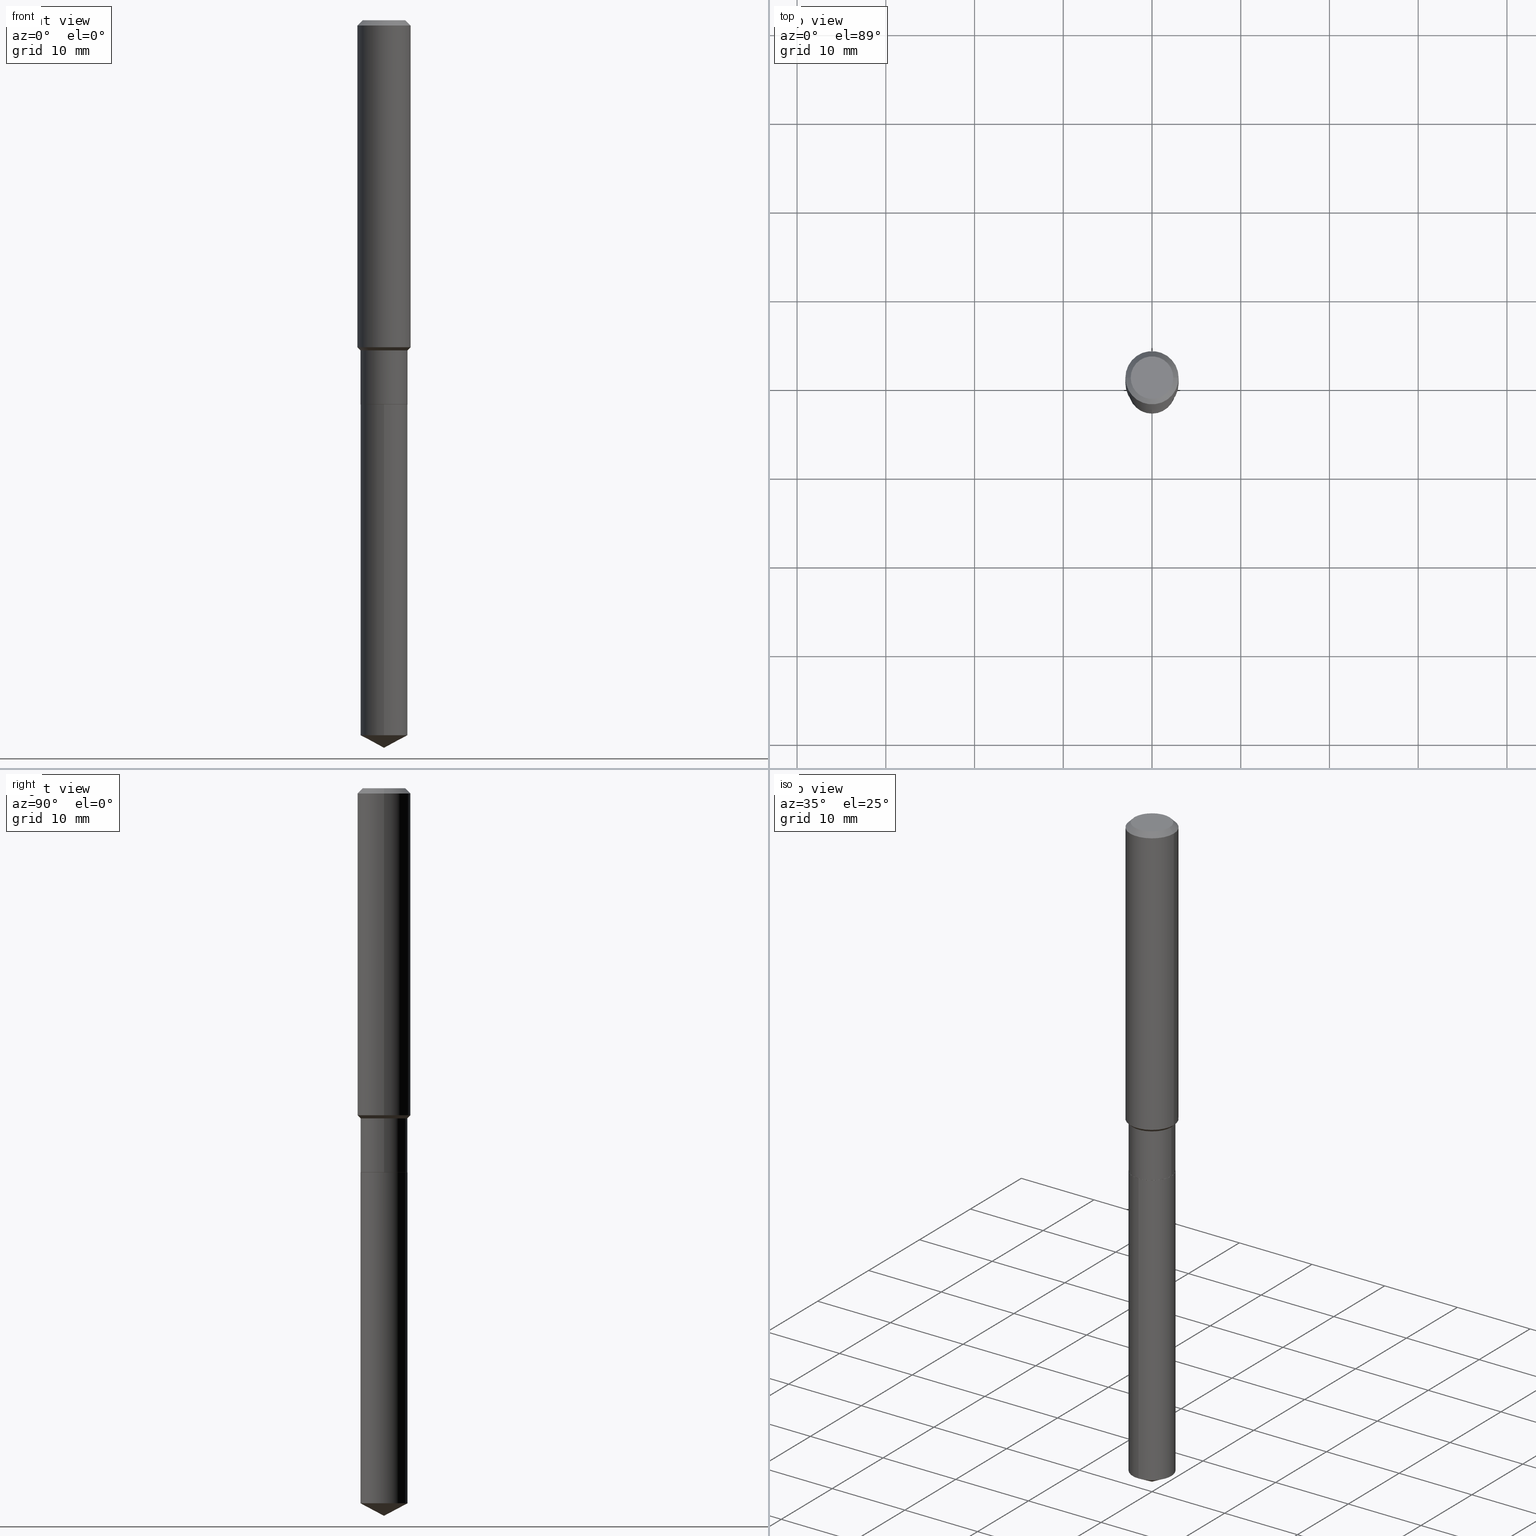
[diagram: canonical four-view strip — front | top / right | iso, engineering-drawing reading convention]
A machine part, canonical four-view strip (front | top / right | iso — engineering-drawing reading convention). The complete STEP part file that produces these views, byte-faithful:
ISO-10303-21;
HEADER;
FILE_DESCRIPTION (( 'STEP AP203' ),
    '1' );
FILE_NAME ('64823.STEP',
    '2024-04-24T19:02:20',
    ( '' ),
    ( '' ),
    'SwSTEP 2.0',
    'SolidWorks 2023',
    '' );
FILE_SCHEMA (( 'CONFIG_CONTROL_DESIGN' ));
ENDSEC;

DATA;
#1 = PLANE ( 'NONE',  #293 ) ;
#2 = ORIENTED_EDGE ( 'NONE', *, *, #68, .F. ) ;
#3 = EDGE_CURVE ( 'NONE', #156, #382, #23, .T. ) ;
#4 = DIRECTION ( 'NONE',  ( 0.7071067811865459074, -7.319954787623249734E-15, -0.7071067811865491270 ) ) ;
#5 = AXIS2_PLACEMENT_3D ( 'NONE', #26, #400, #403 ) ;
#6 = ORIENTED_EDGE ( 'NONE', *, *, #135, .F. ) ;
#7 = CARTESIAN_POINT ( 'NONE',  ( -8.838323479695300406E-28, 1.261888582880123659E-13, 36.14177874015747705 ) ) ;
#8 = EDGE_CURVE ( 'NONE', #153, #382, #288, .T. ) ;
#9 = ORIENTED_EDGE ( 'NONE', *, *, #162, .F. ) ;
#10 = APPROVAL_STATUS ( 'not_yet_approved' ) ;
#11 = ORIENTED_EDGE ( 'NONE', *, *, #12, .F. ) ;
#12 = EDGE_CURVE ( 'NONE', #382, #235, #321, .T. ) ;
#13 = DIRECTION ( 'NONE',  ( -1.000000000000000000, 6.982962677686266711E-15, 0.000000000000000000 ) ) ;
#14 = LOCAL_TIME ( 15, 2, 20.00000000000000000, #393 ) ;
#15 = CC_DESIGN_PERSON_AND_ORGANIZATION_ASSIGNMENT ( #20, #473, ( #323 ) ) ;
#16 = LENGTH_MEASURE_WITH_UNIT ( LENGTH_MEASURE( 0.02539999999999999897 ), #160 );
#17 = CARTESIAN_POINT ( 'NONE',  ( 7.894676434205138349E-29, -1.127159290225695874E-14, -3.228299999999999947 ) ) ;
#18 = PERSON_AND_ORGANIZATION ( #454, #185 ) ;
#19 = DIRECTION ( 'NONE',  ( -2.445468806185136597E-29, 3.491481338843145583E-15, 1.000000000000000000 ) ) ;
#20 = PERSON_AND_ORGANIZATION ( #454, #185 ) ;
#21 = EDGE_CURVE ( 'NONE', #53, #157, #96, .T. ) ;
#22 = FACE_OUTER_BOUND ( 'NONE', #245, .T. ) ;
#23 = CIRCLE ( 'NONE', #334, 0.1043499999999999567 ) ;
#24 = VECTOR ( 'NONE', #172, 39.37007874015748143 ) ;
#25 = DIRECTION ( 'NONE',  ( 6.273719981627760554E-15, 0.8829475928589289868, 0.4694715627858866425 ) ) ;
#26 = CARTESIAN_POINT ( 'NONE',  ( 4.716267017698007905E-46, -6.733579360998555036E-32, -1.928573779297252010E-17 ) ) ;
#27 = EDGE_CURVE ( 'NONE', #199, #45, #252, .T. ) ;
#28 = CARTESIAN_POINT ( 'NONE',  ( -0.1038499999999999840, -5.211380380064935697E-15, -1.704699999999999882 ) ) ;
#29 = AXIS2_PLACEMENT_3D ( 'NONE', #434, #105, #107 ) ;
#30 = ADVANCED_FACE ( 'NONE', ( #396 ), #390, .T. ) ;
#31 = CARTESIAN_POINT ( 'NONE',  ( 7.759008975054495409E-29, -1.107784814879499079E-14, -3.172816120806124740 ) ) ;
#32 = CYLINDRICAL_SURFACE ( 'NONE', #103, 0.1043499999999999844 ) ;
#33 = DIRECTION ( 'NONE',  ( 6.982962677686265922E-15, 1.000000000000000000, -3.491494874161929332E-15 ) ) ;
#34 = AXIS2_PLACEMENT_3D ( 'NONE', #52, #207, #13 ) ;
#35 = CARTESIAN_POINT ( 'NONE',  ( 4.167567939500710177E-29, -5.950182497656488633E-15, -1.704200000000000159 ) ) ;
#36 = ORIENTED_EDGE ( 'NONE', *, *, #475, .F. ) ;
#37 = EDGE_CURVE ( 'NONE', #70, #153, #158, .T. ) ;
#38 = CARTESIAN_POINT ( 'NONE',  ( 3.581878160419369815E-29, -5.113972717003555292E-15, -1.464700000000000113 ) ) ;
#39 = PRODUCT ( '64823', '64823', '', ( #284 ) ) ;
#40 = ORIENTED_EDGE ( 'NONE', *, *, #332, .T. ) ;
#41 = CARTESIAN_POINT ( 'NONE',  ( 0.1180999999999999966, -8.926936027602933910E-16, -0.02362000000000014088 ) ) ;
#42 = ORIENTED_EDGE ( 'NONE', *, *, #447, .F. ) ;
#43 = DIRECTION ( 'NONE',  ( -2.445468806185136597E-29, 3.491481338843145583E-15, 1.000000000000000000 ) ) ;
#44 = VECTOR ( 'NONE', #4, 39.37007874015748143 ) ;
#45 = VERTEX_POINT ( 'NONE', #49 ) ;
#46 = APPROVAL_STATUS ( 'not_yet_approved' ) ;
#47 = ORIENTED_EDGE ( 'NONE', *, *, #80, .F. ) ;
#48 = COORDINATED_UNIVERSAL_TIME_OFFSET ( 5, 0, .BEHIND. ) ;
#49 = CARTESIAN_POINT ( 'NONE',  ( -0.1180999999999999966, -1.735065847976289334E-15, -0.02362000000000014088 ) ) ;
#50 = AXIS2_PLACEMENT_3D ( 'NONE', #413, #347, #83 ) ;
#51 = CARTESIAN_POINT ( 'NONE',  ( 4.168790673903801858E-29, -5.951928238325910137E-15, -1.704699999999999882 ) ) ;
#52 = CARTESIAN_POINT ( 'NONE',  ( 5.776197320209327532E-31, -8.246878922347559293E-17, -0.02362000000000014088 ) ) ;
#53 = VERTEX_POINT ( 'NONE', #468 ) ;
#54 = ADVANCED_FACE ( 'NONE', ( #248 ), #354, .T. ) ;
#55 = APPROVAL_DATE_TIME ( #469, #459 ) ;
#56 = DIRECTION ( 'NONE',  ( -2.445468806185136597E-29, 3.491481338843145583E-15, 1.000000000000000000 ) ) ;
#57 = EDGE_CURVE ( 'NONE', #225, #70, #201, .T. ) ;
#58 = DIRECTION ( 'NONE',  ( -2.445468806185136597E-29, 3.491481338843145583E-15, 1.000000000000000000 ) ) ;
#59 = CIRCLE ( 'NONE', #336, 0.1043499999999999567 ) ;
#60 = ORIENTED_EDGE ( 'NONE', *, *, #68, .T. ) ;
#61 = FACE_OUTER_BOUND ( 'NONE', #395, .T. ) ;
#62 = ADVANCED_FACE ( 'NONE', ( #22 ), #230, .T. ) ;
#63 = FACE_OUTER_BOUND ( 'NONE', #211, .T. ) ;
#64 = CARTESIAN_POINT ( 'NONE',  ( 7.414513447657423334E-16, 0.1043499999999940447, -1.704700000000000326 ) ) ;
#65 = AXIS2_PLACEMENT_3D ( 'NONE', #51, #467, #126 ) ;
#66 = CARTESIAN_POINT ( 'NONE',  ( 7.894708941274386321E-29, -1.127154675494109625E-14, -3.228299999999999947 ) ) ;
#67 = ORIENTED_EDGE ( 'NONE', *, *, #340, .T. ) ;
#68 = EDGE_CURVE ( 'NONE', #235, #45, #474, .T. ) ;
#69 = CARTESIAN_POINT ( 'NONE',  ( -7.286721554165200096E-16, -0.1043500000000059519, -1.704699999999999660 ) ) ;
#70 = VERTEX_POINT ( 'NONE', #324 ) ;
#71 = ADVANCED_FACE ( 'NONE', ( #132 ), #171, .T. ) ;
#72 = DIRECTION ( 'NONE',  ( 2.445459354522546466E-29, -3.491494874161929332E-15, -1.000000000000000000 ) ) ;
#73 = ORIENTED_EDGE ( 'NONE', *, *, #340, .F. ) ;
#74 = VECTOR ( 'NONE', #359, 39.37007874015748143 ) ;
#75 = CIRCLE ( 'NONE', #203, 0.1043499999999999844 ) ;
#76 = LOCAL_TIME ( 15, 2, 20.00000000000000000, #48 ) ;
#77 = CYLINDRICAL_SURFACE ( 'NONE', #222, 0.1043499999999999844 ) ;
#78 = MANIFOLD_SOLID_BREP ( 'Body-Move/Copy2[2]', #212 ) ;
#79 = ORIENTED_EDGE ( 'NONE', *, *, #278, .F. ) ;
#80 = EDGE_CURVE ( 'NONE', #45, #199, #292, .T. ) ;
#81 = CARTESIAN_POINT ( 'NONE',  ( 7.894676434205138349E-29, -1.127159290225695716E-14, -3.228299999999999947 ) ) ;
#82 = EDGE_LOOP ( 'NONE', ( #67, #392 ) ) ;
#83 = DIRECTION ( 'NONE',  ( -6.982962677686265922E-15, -1.000000000000000000, 2.617966452960482631E-15 ) ) ;
#84 = EDGE_LOOP ( 'NONE', ( #183, #148, #128, #406 ) ) ;
#85 = AXIS2_PLACEMENT_3D ( 'NONE', #31, #219, #365 ) ;
#86 = DIRECTION ( 'NONE',  ( 1.000000000000000000, -6.982962677686263555E-15, 0.000000000000000000 ) ) ;
#87 = ORIENTED_EDGE ( 'NONE', *, *, #481, .F. ) ;
#88 = DIRECTION ( 'NONE',  ( -6.165590087286829718E-15, -0.8829475928589257672, 0.4694715627858929707 ) ) ;
#89 = PERSON_AND_ORGANIZATION_ROLE ( 'creator' ) ;
#90 = EDGE_CURVE ( 'NONE', #408, #271, #124, .T. ) ;
#91 = DIRECTION ( 'NONE',  ( -2.445468806185136877E-29, 3.491481338843145188E-15, 1.000000000000000000 ) ) ;
#92 =( NAMED_UNIT ( * ) PLANE_ANGLE_UNIT ( ) SI_UNIT ( $, .RADIAN. ) );
#93 = VECTOR ( 'NONE', #180, 39.37007874015748143 ) ;
#94 = ORIENTED_EDGE ( 'NONE', *, *, #369, .T. ) ;
#95 = COORDINATED_UNIVERSAL_TIME_OFFSET ( 5, 0, .BEHIND. ) ;
#96 = LINE ( 'NONE', #387, #290 ) ;
#97 = ADVANCED_FACE ( 'NONE', ( #161 ), #177, .T. ) ;
#98 = DIRECTION ( 'NONE',  ( 1.000000000000000000, -6.982962677686263555E-15, 0.000000000000000000 ) ) ;
#99 = ORIENTED_EDGE ( 'NONE', *, *, #21, .F. ) ;
#100 = ADVANCED_FACE ( 'NONE', ( #280 ), #451, .T. ) ;
#101 = DIRECTION ( 'NONE',  ( -2.438088387897960049E-29, 3.491481338843145188E-15, 1.000000000000000000 ) ) ;
#102 = AXIS2_PLACEMENT_3D ( 'NONE', #394, #129, #286 ) ;
#103 = AXIS2_PLACEMENT_3D ( 'NONE', #370, #331, #484 ) ;
#104 = PRODUCT_DEFINITION ( 'UNKNOWN', '', #323, #358 ) ;
#105 = DIRECTION ( 'NONE',  ( -2.445468806185136597E-29, 3.491481338843145583E-15, 1.000000000000000000 ) ) ;
#106 = DIRECTION ( 'NONE',  ( 1.000000000000000000, -6.982962677686265922E-15, 0.000000000000000000 ) ) ;
#107 = DIRECTION ( 'NONE',  ( 1.000000000000000000, -6.982962677686263555E-15, 0.000000000000000000 ) ) ;
#108 = ADVANCED_FACE ( 'NONE', ( #294 ), #428, .T. ) ;
#109 = LINE ( 'NONE', #69, #274 ) ;
#110 = VERTEX_POINT ( 'NONE', #444 ) ;
#111 = DIRECTION ( 'NONE',  ( -2.445468806185136597E-29, 3.491481338843145583E-15, 1.000000000000000000 ) ) ;
#112 = ORIENTED_EDGE ( 'NONE', *, *, #223, .T. ) ;
#113 = CARTESIAN_POINT ( 'NONE',  ( 4.168790673903801858E-29, -5.951928238325910137E-15, -1.704699999999999882 ) ) ;
#114 = VERTEX_POINT ( 'NONE', #28 ) ;
#115 = CC_DESIGN_APPROVAL ( #343, ( #104 ) ) ;
#116 = CARTESIAN_POINT ( 'NONE',  ( 0.09447999999999998066, -7.704367267948738690E-16, -1.928573779296752193E-17 ) ) ;
#117 = ADVANCED_FACE ( 'NONE', ( #63 ), #367, .F. ) ;
#118 = ORIENTED_EDGE ( 'NONE', *, *, #21, .T. ) ;
#119 = DIRECTION ( 'NONE',  ( 1.000000000000000000, -6.982962677686265922E-15, 0.000000000000000000 ) ) ;
#120 = ORIENTED_EDGE ( 'NONE', *, *, #8, .F. ) ;
#121 = CARTESIAN_POINT ( 'NONE',  ( 0.000000000000000000, 0.000000000000000000, 0.000000000000000000 ) ) ;
#122 = ORIENTED_EDGE ( 'NONE', *, *, #364, .T. ) ;
#123 = PERSON_AND_ORGANIZATION ( #454, #185 ) ;
#124 = LINE ( 'NONE', #17, #479 ) ;
#125 = CALENDAR_DATE ( 2024, 24, 4 ) ;
#126 = DIRECTION ( 'NONE',  ( 1.000000000000000000, -6.982962677686268288E-15, 0.000000000000000000 ) ) ;
#127 = APPLICATION_PROTOCOL_DEFINITION ( 'international standard', 'config_control_design', 1994, #351 ) ;
#128 = ORIENTED_EDGE ( 'NONE', *, *, #3, .F. ) ;
#129 = DIRECTION ( 'NONE',  ( -2.445468806185136597E-29, 3.491481338843145583E-15, 1.000000000000000000 ) ) ;
#130 = ORIENTED_EDGE ( 'NONE', *, *, #404, .F. ) ;
#131 = PERSON_AND_ORGANIZATION_ROLE ( 'design_supplier' ) ;
#132 = FACE_OUTER_BOUND ( 'NONE', #489, .T. ) ;
#133 = ORIENTED_EDGE ( 'NONE', *, *, #198, .T. ) ;
#134 = LINE ( 'NONE', #398, #93 ) ;
#135 = EDGE_CURVE ( 'NONE', #342, #235, #298, .T. ) ;
#136 = CYLINDRICAL_SURFACE ( 'NONE', #283, 0.1043499999999999706 ) ;
#137 = AXIS2_PLACEMENT_3D ( 'NONE', #277, #421, #164 ) ;
#138 = CIRCLE ( 'NONE', #143, 0.09447999999999998066 ) ;
#139 = DIRECTION ( 'NONE',  ( -2.445468806185136597E-29, 3.491481338843145583E-15, 1.000000000000000000 ) ) ;
#140 = CARTESIAN_POINT ( 'NONE',  ( 0.1180999999999999966, -9.071566814582237199E-16, -0.02362000000000014088 ) ) ;
#141 = ADVANCED_FACE ( 'NONE', ( #61 ), #176, .T. ) ;
#142 = DIRECTION ( 'NONE',  ( 1.000000000000000000, -6.982962677686266711E-15, 4.876176775795936353E-29 ) ) ;
#143 = AXIS2_PLACEMENT_3D ( 'NONE', #483, #296, #255 ) ;
#144 =( GEOMETRIC_REPRESENTATION_CONTEXT ( 3 ) GLOBAL_UNCERTAINTY_ASSIGNED_CONTEXT ( ( #155 ) ) GLOBAL_UNIT_ASSIGNED_CONTEXT ( ( #318, #92, #315 ) ) REPRESENTATION_CONTEXT ( 'NONE', 'WORKASPACE' ) );
#145 = DIMENSIONAL_EXPONENTS ( 1.000000000000000000, 0.000000000000000000, 0.000000000000000000, 0.000000000000000000, 0.000000000000000000, 0.000000000000000000, 0.000000000000000000 ) ;
#146 = DIRECTION ( 'NONE',  ( -2.445468806185136877E-29, 3.491481338843145188E-15, 1.000000000000000000 ) ) ;
#147 = DIRECTION ( 'NONE',  ( -2.445459354522547026E-29, 3.491494874161929332E-15, 1.000000000000000000 ) ) ;
#148 = ORIENTED_EDGE ( 'NONE', *, *, #8, .T. ) ;
#149 = PRODUCT_RELATED_PRODUCT_CATEGORY ( 'detail', '', ( #39 ) ) ;
#150 = CARTESIAN_POINT ( 'NONE',  ( 4.168790673903801858E-29, -5.951928238325910137E-15, -1.704699999999999882 ) ) ;
#151 = ORIENTED_EDGE ( 'NONE', *, *, #27, .T. ) ;
#152 = FACE_OUTER_BOUND ( 'NONE', #249, .T. ) ;
#153 = VERTEX_POINT ( 'NONE', #295 ) ;
#154 = DIRECTION ( 'NONE',  ( -6.982962677686265922E-15, -1.000000000000000000, 2.617966452960482631E-15 ) ) ;
#155 = UNCERTAINTY_MEASURE_WITH_UNIT (LENGTH_MEASURE( 1.000000000000000082E-05 ), #318, 'distance_accuracy_value', 'NONE');
#156 = VERTEX_POINT ( 'NONE', #405 ) ;
#157 = VERTEX_POINT ( 'NONE', #64 ) ;
#158 = CIRCLE ( 'NONE', #228, 0.1043499999999999844 ) ;
#159 = CIRCLE ( 'NONE', #410, 0.1038499999999999840 ) ;
#160 =( LENGTH_UNIT ( ) NAMED_UNIT ( * ) SI_UNIT ( $, .METRE. ) );
#161 = FACE_OUTER_BOUND ( 'NONE', #311, .T. ) ;
#162 = EDGE_CURVE ( 'NONE', #156, #342, #134, .T. ) ;
#163 = DIRECTION ( 'NONE',  ( 0.000000000000000000, 0.000000000000000000, 1.000000000000000000 ) ) ;
#164 = DIRECTION ( 'NONE',  ( -1.000000000000000000, 6.982962677686266711E-15, 0.000000000000000000 ) ) ;
#165 = APPROVAL_STATUS ( 'not_yet_approved' ) ;
#166 = CARTESIAN_POINT ( 'NONE',  ( 3.581878160419369815E-29, -5.113972717003555292E-15, -1.464700000000000113 ) ) ;
#167 = ORIENTED_EDGE ( 'NONE', *, *, #12, .T. ) ;
#168 = APPLICATION_CONTEXT ( 'configuration controlled 3d designs of mechanical parts and assemblies' ) ;
#169 = DIRECTION ( 'NONE',  ( 1.000000000000000000, 0.000000000000000000, 0.000000000000000000 ) ) ;
#170 = AXIS2_PLACEMENT_3D ( 'NONE', #330, #101, #256 ) ;
#171 = CONICAL_SURFACE ( 'NONE', #328, 0.1043499999999999567, 0.7853981633974526089 ) ;
#172 = DIRECTION ( 'NONE',  ( -2.445468806185136877E-29, 3.491481338843145188E-15, 1.000000000000000000 ) ) ;
#173 = LOCAL_TIME ( 15, 2, 20.00000000000000000, #209 ) ;
#174 = FACE_OUTER_BOUND ( 'NONE', #319, .T. ) ;
#175 = CARTESIAN_POINT ( 'NONE',  ( 0.000000000000000000, 0.000000000000000000, 0.000000000000000000 ) ) ;
#176 = CYLINDRICAL_SURFACE ( 'NONE', #397, 0.1181000000000000799 ) ;
#177 = CONICAL_SURFACE ( 'NONE', #65, 0.1038499999999999840, 0.7853981633975507526 ) ;
#178 = CARTESIAN_POINT ( 'NONE',  ( 7.759008975054495409E-29, -1.107784814879499079E-14, -3.172816120806124740 ) ) ;
#179 = CC_DESIGN_PERSON_AND_ORGANIZATION_ASSIGNMENT ( #287, #431, ( #247 ) ) ;
#180 = DIRECTION ( 'NONE',  ( 0.7071067811865505703, -2.468850131082288615E-15, 0.7071067811865444641 ) ) ;
#181 = LINE ( 'NONE', #486, #464 ) ;
#182 = VECTOR ( 'NONE', #91, 39.37007874015748143 ) ;
#183 = ORIENTED_EDGE ( 'NONE', *, *, #37, .T. ) ;
#184 = VECTOR ( 'NONE', #25, 39.37007874015748854 ) ;
#185 = ORGANIZATION ( 'UNSPECIFIED', 'UNSPECIFIED', '' ) ;
#186 = DIRECTION ( 'NONE',  ( -2.445468806185136597E-29, 3.491481338843145583E-15, 1.000000000000000000 ) ) ;
#187 = ORIENTED_EDGE ( 'NONE', *, *, #213, .F. ) ;
#188 = ADVANCED_FACE ( 'NONE', ( #258 ), #136, .T. ) ;
#189 = DIRECTION ( 'NONE',  ( -2.445459354522547026E-29, 3.491494874161929332E-15, 1.000000000000000000 ) ) ;
#190 = ORIENTED_EDGE ( 'NONE', *, *, #317, .T. ) ;
#191 = LINE ( 'NONE', #344, #383 ) ;
#192 = EDGE_LOOP ( 'NONE', ( #453, #118, #73, #79 ) ) ;
#193 = CIRCLE ( 'NONE', #85, 0.1043499999999999844 ) ;
#194 = CC_DESIGN_SECURITY_CLASSIFICATION ( #247, ( #323 ) ) ;
#195 = CARTESIAN_POINT ( 'NONE',  ( 4.168790673903801858E-29, -5.951928238325910137E-15, -1.704699999999999882 ) ) ;
#196 = VERTEX_POINT ( 'NONE', #289 ) ;
#197 = APPROVAL_ROLE ( '' ) ;
#198 = EDGE_CURVE ( 'NONE', #53, #271, #193, .T. ) ;
#199 = VERTEX_POINT ( 'NONE', #140 ) ;
#200 = CALENDAR_DATE ( 2024, 24, 4 ) ;
#201 = LINE ( 'NONE', #215, #74 ) ;
#202 = EDGE_CURVE ( 'NONE', #271, #53, #75, .T. ) ;
#203 = AXIS2_PLACEMENT_3D ( 'NONE', #178, #221, #401 ) ;
#204 = CALENDAR_DATE ( 2024, 24, 4 ) ;
#205 = DIRECTION ( 'NONE',  ( 1.000000000000000000, -6.982962677686265922E-15, 0.000000000000000000 ) ) ;
#206 = EDGE_CURVE ( 'NONE', #337, #196, #138, .T. ) ;
#207 = DIRECTION ( 'NONE',  ( 2.445468806185136597E-29, -3.491481338843145583E-15, -1.000000000000000000 ) ) ;
#208 = EDGE_LOOP ( 'NONE', ( #99, #133, #302, #487 ) ) ;
#209 = COORDINATED_UNIVERSAL_TIME_OFFSET ( 5, 0, .BEHIND. ) ;
#210 = DIRECTION ( 'NONE',  ( 1.000000000000000000, -6.982962677686266711E-15, 4.876176775795936353E-29 ) ) ;
#211 = EDGE_LOOP ( 'NONE', ( #87, #449 ) ) ;
#212 = CLOSED_SHELL ( 'NONE', ( #108, #62, #30, #71, #300, #188, #100, #141, #54, #291, #117, #97 ) ) ;
#213 = EDGE_CURVE ( 'NONE', #196, #45, #217, .T. ) ;
#214 = LOCAL_TIME ( 15, 2, 20.00000000000000000, #349 ) ;
#215 = CARTESIAN_POINT ( 'NONE',  ( 0.1038499999999999840, -6.677108912403628752E-15, -1.704699999999999882 ) ) ;
#216 = ORIENTED_EDGE ( 'NONE', *, *, #57, .F. ) ;
#217 = LINE ( 'NONE', #329, #418 ) ;
#218 = APPROVAL ( #46, 'UNSPECIFIED' ) ;
#219 = DIRECTION ( 'NONE',  ( -2.445459354522547026E-29, 3.491494874161929332E-15, 1.000000000000000000 ) ) ;
#220 = CALENDAR_DATE ( 2024, 24, 4 ) ;
#221 = DIRECTION ( 'NONE',  ( -2.445459354522547026E-29, 3.491494874161929332E-15, 1.000000000000000000 ) ) ;
#222 = AXIS2_PLACEMENT_3D ( 'NONE', #195, #232, #154 ) ;
#223 = EDGE_CURVE ( 'NONE', #196, #337, #485, .T. ) ;
#224 = FACE_OUTER_BOUND ( 'NONE', #192, .T. ) ;
#225 = VERTEX_POINT ( 'NONE', #440 ) ;
#226 = DIRECTION ( 'NONE',  ( -2.445459354522547026E-29, 3.491494874161929332E-15, 1.000000000000000000 ) ) ;
#227 = DIRECTION ( 'NONE',  ( 1.000000000000000000, -6.982962677686268288E-15, 0.000000000000000000 ) ) ;
#228 = AXIS2_PLACEMENT_3D ( 'NONE', #353, #58, #98 ) ;
#229 = ORIENTED_EDGE ( 'NONE', *, *, #427, .F. ) ;
#230 = CONICAL_SURFACE ( 'NONE', #34, 0.1180999999999999966, 0.7853981633974460586 ) ;
#231 = APPROVAL_PERSON_ORGANIZATION ( #360, #459, #460 ) ;
#232 = DIRECTION ( 'NONE',  ( -2.445459354522547026E-29, 3.491494874161929332E-15, 1.000000000000000000 ) ) ;
#233 = ORIENTED_EDGE ( 'NONE', *, *, #236, .F. ) ;
#234 = CARTESIAN_POINT ( 'NONE',  ( 2.358133508849003952E-46, -3.366789680499277518E-32, -9.642868896486260050E-18 ) ) ;
#235 = VERTEX_POINT ( 'NONE', #482 ) ;
#236 = EDGE_CURVE ( 'NONE', #408, #53, #439, .T. ) ;
#237 = DIRECTION ( 'NONE',  ( -6.982962677686266711E-15, -1.000000000000000000, 3.541896320645571124E-15 ) ) ;
#238 = ORIENTED_EDGE ( 'NONE', *, *, #3, .T. ) ;
#239 = CLOSED_SHELL ( 'NONE', ( #246, #423, #433, #441, #465 ) ) ;
#240 = CIRCLE ( 'NONE', #285, 0.1038499999999999840 ) ;
#241 = DATE_AND_TIME ( #200, #76 ) ;
#242 = ORIENTED_EDGE ( 'NONE', *, *, #90, .F. ) ;
#243 = DATE_TIME_ROLE ( 'classification_date' ) ;
#244 = DIRECTION ( 'NONE',  ( -2.445459354522547026E-29, 3.491494874161929332E-15, 1.000000000000000000 ) ) ;
#245 = EDGE_LOOP ( 'NONE', ( #348, #333, #151, #187 ) ) ;
#246 = ADVANCED_FACE ( 'NONE', ( #224 ), #32, .T. ) ;
#247 = SECURITY_CLASSIFICATION ( '', '', #420 ) ;
#248 = FACE_OUTER_BOUND ( 'NONE', #262, .T. ) ;
#249 = EDGE_LOOP ( 'NONE', ( #242, #345, #309 ) ) ;
#250 = MANIFOLD_SOLID_BREP ( 'Body-Move/Copy2[1]', #239 ) ;
#251 = CARTESIAN_POINT ( 'NONE',  ( 3.581878160419369815E-29, -5.113972717003555292E-15, -1.464700000000000113 ) ) ;
#252 = CIRCLE ( 'NONE', #102, 0.1180999999999999966 ) ;
#253 = CARTESIAN_POINT ( 'NONE',  ( 4.168790673903801858E-29, -5.951928238325910137E-15, -1.704699999999999882 ) ) ;
#254 = DATE_AND_TIME ( #220, #214 ) ;
#255 = DIRECTION ( 'NONE',  ( 1.000000000000000000, -6.982962677686267499E-15, 4.875432709231658792E-29 ) ) ;
#256 = DIRECTION ( 'NONE',  ( 1.000000000000000000, -6.982962677686265922E-15, 4.876176775795935793E-29 ) ) ;
#257 = CC_DESIGN_DATE_AND_TIME_ASSIGNMENT ( #241, #243, ( #247 ) ) ;
#258 = FACE_OUTER_BOUND ( 'NONE', #458, .T. ) ;
#259 = VECTOR ( 'NONE', #457, 39.37007874015748143 ) ;
#260 = CARTESIAN_POINT ( 'NONE',  ( 0.000000000000000000, 0.000000000000000000, 0.000000000000000000 ) ) ;
#261 = DIRECTION ( 'NONE',  ( -2.445468806185136597E-29, 3.491481338843145583E-15, 1.000000000000000000 ) ) ;
#262 = EDGE_LOOP ( 'NONE', ( #130, #269, #306, #325 ) ) ;
#263 = CC_DESIGN_PERSON_AND_ORGANIZATION_ASSIGNMENT ( #429, #281, ( #39 ) ) ;
#264 = CARTESIAN_POINT ( 'NONE',  ( -8.838323479695300406E-28, 1.261888582880123659E-13, 36.14177874015747705 ) ) ;
#265 = ORIENTED_EDGE ( 'NONE', *, *, #475, .T. ) ;
#266 = CIRCLE ( 'NONE', #50, 0.1043499999999999844 ) ;
#267 = CC_DESIGN_APPROVAL ( #218, ( #247 ) ) ;
#268 = CARTESIAN_POINT ( 'NONE',  ( 0.1043499999999999706, -7.286721554165617206E-16, 5.088290465543058008E-30 ) ) ;
#269 = ORIENTED_EDGE ( 'NONE', *, *, #223, .F. ) ;
#270 = DIRECTION ( 'NONE',  ( -0.7071067811866199593, 7.493145998870616062E-15, 0.7071067811864750752 ) ) ;
#271 = VERTEX_POINT ( 'NONE', #297 ) ;
#272 = CARTESIAN_POINT ( 'NONE',  ( 3.548252964334323940E-29, -5.065964848594461971E-15, -1.450949999999999962 ) ) ;
#273 = ORIENTED_EDGE ( 'NONE', *, *, #135, .T. ) ;
#274 = VECTOR ( 'NONE', #226, 39.37007874015748143 ) ;
#275 = AXIS2_PLACEMENT_3D ( 'NONE', #272, #417, #86 ) ;
#276 = APPLICATION_PROTOCOL_DEFINITION ( 'international standard', 'config_control_design', 1994, #168 ) ;
#277 = CARTESIAN_POINT ( 'NONE',  ( 5.776197320209327532E-31, -8.246878922347559293E-17, -0.02362000000000014088 ) ) ;
#278 = EDGE_CURVE ( 'NONE', #271, #110, #109, .T. ) ;
#279 = APPROVAL_DATE_TIME ( #425, #343 ) ;
#280 = FACE_OUTER_BOUND ( 'NONE', #446, .T. ) ;
#281 = PERSON_AND_ORGANIZATION_ROLE ( 'design_owner' ) ;
#282 = CARTESIAN_POINT ( 'NONE',  ( 0.000000000000000000, 0.000000000000000000, 0.000000000000000000 ) ) ;
#283 = AXIS2_PLACEMENT_3D ( 'NONE', #175, #437, #142 ) ;
#284 = MECHANICAL_CONTEXT ( 'NONE', #168, 'mechanical' ) ;
#285 = AXIS2_PLACEMENT_3D ( 'NONE', #445, #111, #227 ) ;
#286 = DIRECTION ( 'NONE',  ( 1.000000000000000000, -6.982962677686266711E-15, 0.000000000000000000 ) ) ;
#287 = PERSON_AND_ORGANIZATION ( #454, #185 ) ;
#288 = LINE ( 'NONE', #316, #182 ) ;
#289 = CARTESIAN_POINT ( 'NONE',  ( -0.09447999999999998066, 7.009847083995354710E-16, -1.928573779297727792E-17 ) ) ;
#290 = VECTOR ( 'NONE', #244, 39.37007874015748143 ) ;
#291 = ADVANCED_FACE ( 'NONE', ( #174 ), #326, .F. ) ;
#292 = CIRCLE ( 'NONE', #313, 0.1180999999999999966 ) ;
#293 = AXIS2_PLACEMENT_3D ( 'NONE', #150, #72, #33 ) ;
#294 = FACE_OUTER_BOUND ( 'NONE', #386, .T. ) ;
#295 = CARTESIAN_POINT ( 'NONE',  ( -0.1043499999999999844, -4.790626262564358219E-15, -1.704200000000000159 ) ) ;
#296 = DIRECTION ( 'NONE',  ( -2.445468806185136597E-29, 3.491481338843145583E-15, 1.000000000000000000 ) ) ;
#297 = CARTESIAN_POINT ( 'NONE',  ( -7.286721554164842150E-16, -0.1043500000000110589, -3.172816120806124296 ) ) ;
#298 = CIRCLE ( 'NONE', #29, 0.1181000000000001632 ) ;
#299 = ORIENTED_EDGE ( 'NONE', *, *, #206, .T. ) ;
#300 = ADVANCED_FACE ( 'NONE', ( #407 ), #375, .T. ) ;
#301 = DIRECTION ( 'NONE',  ( -2.445459354522547026E-29, 3.491494874161929332E-15, 1.000000000000000000 ) ) ;
#302 = ORIENTED_EDGE ( 'NONE', *, *, #278, .T. ) ;
#303 = CARTESIAN_POINT ( 'NONE',  ( -0.1043499999999999567, -4.790626262564358219E-15, -1.464700000000000113 ) ) ;
#304 = ORIENTED_EDGE ( 'NONE', *, *, #364, .F. ) ;
#305 = DIRECTION ( 'NONE',  ( 1.000000000000000000, -6.982962677686263555E-15, 0.000000000000000000 ) ) ;
#306 = ORIENTED_EDGE ( 'NONE', *, *, #213, .T. ) ;
#307 = AXIS2_PLACEMENT_3D ( 'NONE', #253, #139, #476 ) ;
#308 = CARTESIAN_POINT ( 'NONE',  ( 4.168790673903801858E-29, -5.951928238325910137E-15, -1.704699999999999882 ) ) ;
#309 = ORIENTED_EDGE ( 'NONE', *, *, #202, .F. ) ;
#310 = DIRECTION ( 'NONE',  ( -1.000000000000000000, 6.982962677686265922E-15, -4.876176775795935793E-29 ) ) ;
#311 = EDGE_LOOP ( 'NONE', ( #229, #40, #414, #304 ) ) ;
#312 = DIRECTION ( 'NONE',  ( -2.445468806185136597E-29, 3.491481338843145583E-15, 1.000000000000000000 ) ) ;
#313 = AXIS2_PLACEMENT_3D ( 'NONE', #362, #312, #463 ) ;
#314 = CIRCLE ( 'NONE', #389, 0.1043499999999999844 ) ;
#315 =( NAMED_UNIT ( * ) SI_UNIT ( $, .STERADIAN. ) SOLID_ANGLE_UNIT ( ) );
#316 = CARTESIAN_POINT ( 'NONE',  ( -0.1043499999999999706, 7.414513447656643348E-16, -5.132908766680992704E-30 ) ) ;
#317 = EDGE_CURVE ( 'NONE', #382, #156, #59, .T. ) ;
#318 =( CONVERSION_BASED_UNIT ( 'INCH', #16 ) LENGTH_UNIT ( ) NAMED_UNIT ( #145 ) );
#319 = EDGE_LOOP ( 'NONE', ( #112, #299 ) ) ;
#320 = DATE_TIME_ROLE ( 'creation_date' ) ;
#321 = LINE ( 'NONE', #470, #461 ) ;
#322 = DATE_AND_TIME ( #204, #173 ) ;
#323 = PRODUCT_DEFINITION_FORMATION_WITH_SPECIFIED_SOURCE ( 'ANY', '', #39, .NOT_KNOWN. ) ;
#324 = CARTESIAN_POINT ( 'NONE',  ( 0.1043499999999999844, -6.678854653073050255E-15, -1.704200000000000159 ) ) ;
#325 = ORIENTED_EDGE ( 'NONE', *, *, #80, .T. ) ;
#326 = PLANE ( 'NONE',  #462 ) ;
#327 = DIRECTION ( 'NONE',  ( -2.445468806185136597E-29, 3.491481338843145583E-15, 1.000000000000000000 ) ) ;
#328 = AXIS2_PLACEMENT_3D ( 'NONE', #251, #19, #205 ) ;
#329 = CARTESIAN_POINT ( 'NONE',  ( -0.1180999999999999966, 7.422191030112725094E-16, -0.02362000000000014088 ) ) ;
#330 = CARTESIAN_POINT ( 'NONE',  ( 4.168790673903801858E-29, -5.951928238325910137E-15, -1.704699999999999882 ) ) ;
#331 = DIRECTION ( 'NONE',  ( -2.445459354522547026E-29, 3.491494874161929332E-15, 1.000000000000000000 ) ) ;
#332 = EDGE_CURVE ( 'NONE', #114, #225, #159, .T. ) ;
#333 = ORIENTED_EDGE ( 'NONE', *, *, #404, .T. ) ;
#334 = AXIS2_PLACEMENT_3D ( 'NONE', #166, #432, #430 ) ;
#335 = FACE_OUTER_BOUND ( 'NONE', #456, .T. ) ;
#336 = AXIS2_PLACEMENT_3D ( 'NONE', #38, #43, #119 ) ;
#337 = VERTEX_POINT ( 'NONE', #116 ) ;
#338 = DIRECTION ( 'NONE',  ( 1.000000000000000000, -6.982962677686266711E-15, 4.876176775795936353E-29 ) ) ;
#339 = ORIENTED_EDGE ( 'NONE', *, *, #162, .T. ) ;
#340 = EDGE_CURVE ( 'NONE', #110, #157, #266, .T. ) ;
#341 = LINE ( 'NONE', #41, #44 ) ;
#342 = VERTEX_POINT ( 'NONE', #488 ) ;
#343 = APPROVAL ( #165, 'UNSPECIFIED' ) ;
#344 = CARTESIAN_POINT ( 'NONE',  ( -0.1038499999999999840, -5.214029607239046109E-15, -1.704699999999999882 ) ) ;
#345 = ORIENTED_EDGE ( 'NONE', *, *, #236, .T. ) ;
#346 = CONICAL_SURFACE ( 'NONE', #384, 74.04434902938332641, 1.082104136236485381 ) ;
#347 = DIRECTION ( 'NONE',  ( -2.445459354522547026E-29, 3.491494874161929332E-15, 1.000000000000000000 ) ) ;
#348 = ORIENTED_EDGE ( 'NONE', *, *, #206, .F. ) ;
#349 = COORDINATED_UNIVERSAL_TIME_OFFSET ( 5, 0, .BEHIND. ) ;
#350 = ORIENTED_EDGE ( 'NONE', *, *, #198, .F. ) ;
#351 = APPLICATION_CONTEXT ( 'configuration controlled 3d designs of mechanical parts and assemblies' ) ;
#352 = CARTESIAN_POINT ( 'NONE',  ( 0.000000000000000000, 0.000000000000000000, 0.000000000000000000 ) ) ;
#353 = CARTESIAN_POINT ( 'NONE',  ( 4.167567939500710177E-29, -5.950182497656488633E-15, -1.704200000000000159 ) ) ;
#354 = CONICAL_SURFACE ( 'NONE', #137, 0.1180999999999999966, 0.7853981633974460586 ) ;
#355 = LOCAL_TIME ( 15, 2, 20.00000000000000000, #95 ) ;
#356 = CALENDAR_DATE ( 2024, 24, 4 ) ;
#357 = DIRECTION ( 'NONE',  ( -2.445468806185136597E-29, 3.491481338843145583E-15, 1.000000000000000000 ) ) ;
#358 = DESIGN_CONTEXT ( 'detailed design', #351, 'design' ) ;
#359 = DIRECTION ( 'NONE',  ( 0.7071067811866199593, -2.468850131083015945E-15, 0.7071067811864750752 ) ) ;
#360 = PERSON_AND_ORGANIZATION ( #454, #185 ) ;
#361 = ORIENTED_EDGE ( 'NONE', *, *, #27, .F. ) ;
#362 = CARTESIAN_POINT ( 'NONE',  ( 5.776197320209327532E-31, -8.246878922347559293E-17, -0.02362000000000014088 ) ) ;
#363 = DIRECTION ( 'NONE',  ( -0.7071067811865459074, 2.468850131082240100E-15, -0.7071067811865491270 ) ) ;
#364 = EDGE_CURVE ( 'NONE', #153, #70, #402, .T. ) ;
#365 = DIRECTION ( 'NONE',  ( -6.982962677686265922E-15, -1.000000000000000000, 5.235932905920965262E-15 ) ) ;
#366 = AXIS2_PLACEMENT_3D ( 'NONE', #424, #357, #106 ) ;
#367 = PLANE ( 'NONE',  #170 ) ;
#368 = ADVANCED_BREP_SHAPE_REPRESENTATION ( '64823', ( #250, #78, #411 ), #144 ) ;
#369 = EDGE_CURVE ( 'NONE', #70, #156, #378, .T. ) ;
#370 = CARTESIAN_POINT ( 'NONE',  ( 4.168790673903801858E-29, -5.951928238325910137E-15, -1.704699999999999882 ) ) ;
#371 = ORIENTED_EDGE ( 'NONE', *, *, #317, .F. ) ;
#372 = FACE_OUTER_BOUND ( 'NONE', #82, .T. ) ;
#373 = AXIS2_PLACEMENT_3D ( 'NONE', #121, #186, #338 ) ;
#374 = ORIENTED_EDGE ( 'NONE', *, *, #90, .T. ) ;
#375 = CYLINDRICAL_SURFACE ( 'NONE', #373, 0.1043499999999999706 ) ;
#376 = ORIENTED_EDGE ( 'NONE', *, *, #427, .T. ) ;
#377 = PRODUCT_DEFINITION_SHAPE ( 'NONE', 'NONE',  #104 ) ;
#378 = LINE ( 'NONE', #268, #259 ) ;
#379 = ORIENTED_EDGE ( 'NONE', *, *, #481, .T. ) ;
#380 = DIRECTION ( 'NONE',  ( -6.982962677686265922E-15, -1.000000000000000000, 2.617966452960482631E-15 ) ) ;
#381 = CONICAL_SURFACE ( 'NONE', #442, 74.04434902938332641, 1.082104136236485381 ) ;
#382 = VERTEX_POINT ( 'NONE', #303 ) ;
#383 = VECTOR ( 'NONE', #270, 39.37007874015748143 ) ;
#384 = AXIS2_PLACEMENT_3D ( 'NONE', #7, #147, #448 ) ;
#385 = PERSON_AND_ORGANIZATION ( #454, #185 ) ;
#386 = EDGE_LOOP ( 'NONE', ( #379, #376, #416, #216 ) ) ;
#387 = CARTESIAN_POINT ( 'NONE',  ( 7.414513447657060458E-16, 0.1043499999999940309, -1.704700000000000326 ) ) ;
#388 = CARTESIAN_POINT ( 'NONE',  ( -0.1181000000000000799, 8.391509709326788873E-16, -5.809262341591047988E-30 ) ) ;
#389 = AXIS2_PLACEMENT_3D ( 'NONE', #113, #301, #380 ) ;
#390 = CYLINDRICAL_SURFACE ( 'NONE', #435, 0.1181000000000000799 ) ;
#391 = CC_DESIGN_PERSON_AND_ORGANIZATION_ASSIGNMENT ( #18, #89, ( #104 ) ) ;
#392 = ORIENTED_EDGE ( 'NONE', *, *, #436, .T. ) ;
#393 = COORDINATED_UNIVERSAL_TIME_OFFSET ( 5, 0, .BEHIND. ) ;
#394 = CARTESIAN_POINT ( 'NONE',  ( 5.776197320209327532E-31, -8.246878922347559293E-17, -0.02362000000000014088 ) ) ;
#395 = EDGE_LOOP ( 'NONE', ( #2, #412, #265, #47 ) ) ;
#396 = FACE_OUTER_BOUND ( 'NONE', #419, .T. ) ;
#397 = AXIS2_PLACEMENT_3D ( 'NONE', #260, #327, #478 ) ;
#398 = CARTESIAN_POINT ( 'NONE',  ( 0.1043499999999999567, -5.842644872420116914E-15, -1.464700000000000113 ) ) ;
#399 = APPROVAL_DATE_TIME ( #254, #218 ) ;
#400 = DIRECTION ( 'NONE',  ( -2.445468806185136597E-29, 3.491481338843145583E-15, 1.000000000000000000 ) ) ;
#401 = DIRECTION ( 'NONE',  ( -6.982962677686265922E-15, -1.000000000000000000, 5.235932905920965262E-15 ) ) ;
#402 = CIRCLE ( 'NONE', #471, 0.1043499999999999844 ) ;
#403 = DIRECTION ( 'NONE',  ( 1.000000000000000000, -6.982962677686267499E-15, 4.875432709231658792E-29 ) ) ;
#404 = EDGE_CURVE ( 'NONE', #337, #199, #341, .T. ) ;
#405 = CARTESIAN_POINT ( 'NONE',  ( 0.1043499999999999567, -5.842644872420116914E-15, -1.464700000000000113 ) ) ;
#406 = ORIENTED_EDGE ( 'NONE', *, *, #369, .F. ) ;
#407 = FACE_OUTER_BOUND ( 'NONE', #84, .T. ) ;
#408 = VERTEX_POINT ( 'NONE', #81 ) ;
#409 = FACE_OUTER_BOUND ( 'NONE', #208, .T. ) ;
#410 = AXIS2_PLACEMENT_3D ( 'NONE', #308, #450, #455 ) ;
#411 = AXIS2_PLACEMENT_3D ( 'NONE', #352, #163, #169 ) ;
#412 = ORIENTED_EDGE ( 'NONE', *, *, #447, .T. ) ;
#413 = CARTESIAN_POINT ( 'NONE',  ( 4.168790673903801858E-29, -5.951928238325910137E-15, -1.704699999999999882 ) ) ;
#414 = ORIENTED_EDGE ( 'NONE', *, *, #57, .T. ) ;
#415 = DIRECTION ( 'NONE',  ( 2.438088387897960049E-29, -3.491481338843145188E-15, -1.000000000000000000 ) ) ;
#416 = ORIENTED_EDGE ( 'NONE', *, *, #37, .F. ) ;
#417 = DIRECTION ( 'NONE',  ( -2.445468806185136597E-29, 3.491481338843145583E-15, 1.000000000000000000 ) ) ;
#418 = VECTOR ( 'NONE', #363, 39.37007874015748143 ) ;
#419 = EDGE_LOOP ( 'NONE', ( #273, #60, #361, #36 ) ) ;
#420 = SECURITY_CLASSIFICATION_LEVEL ( 'unclassified' ) ;
#421 = DIRECTION ( 'NONE',  ( 2.445468806185136597E-29, -3.491481338843145583E-15, -1.000000000000000000 ) ) ;
#422 = APPROVAL_ROLE ( '' ) ;
#423 = ADVANCED_FACE ( 'NONE', ( #152 ), #381, .T. ) ;
#424 = CARTESIAN_POINT ( 'NONE',  ( 3.581878160419369815E-29, -5.113972717003555292E-15, -1.464700000000000113 ) ) ;
#425 = DATE_AND_TIME ( #125, #355 ) ;
#426 = DIRECTION ( 'NONE',  ( -0.7071067811865505703, 7.493145998870365204E-15, 0.7071067811865444641 ) ) ;
#427 = EDGE_CURVE ( 'NONE', #114, #153, #191, .T. ) ;
#428 = CONICAL_SURFACE ( 'NONE', #307, 0.1038499999999999840, 0.7853981633975507526 ) ;
#429 = PERSON_AND_ORGANIZATION ( #454, #185 ) ;
#430 = DIRECTION ( 'NONE',  ( 1.000000000000000000, -6.982962677686265922E-15, 0.000000000000000000 ) ) ;
#431 = PERSON_AND_ORGANIZATION_ROLE ( 'classification_officer' ) ;
#432 = DIRECTION ( 'NONE',  ( -2.445468806185136597E-29, 3.491481338843145583E-15, 1.000000000000000000 ) ) ;
#433 = ADVANCED_FACE ( 'NONE', ( #335 ), #346, .T. ) ;
#434 = CARTESIAN_POINT ( 'NONE',  ( 3.548252964334323940E-29, -5.065964848594461971E-15, -1.450949999999999962 ) ) ;
#435 = AXIS2_PLACEMENT_3D ( 'NONE', #282, #56, #210 ) ;
#436 = EDGE_CURVE ( 'NONE', #157, #110, #314, .T. ) ;
#437 = DIRECTION ( 'NONE',  ( -2.445468806185136597E-29, 3.491481338843145583E-15, 1.000000000000000000 ) ) ;
#438 = SHAPE_DEFINITION_REPRESENTATION ( #377, #368 ) ;
#439 = LINE ( 'NONE', #66, #184 ) ;
#440 = CARTESIAN_POINT ( 'NONE',  ( 0.1038499999999999840, -6.677108912403628752E-15, -1.704699999999999882 ) ) ;
#441 = ADVANCED_FACE ( 'NONE', ( #409 ), #77, .T. ) ;
#442 = AXIS2_PLACEMENT_3D ( 'NONE', #264, #189, #237 ) ;
#443 = APPROVAL_PERSON_ORGANIZATION ( #466, #343, #422 ) ;
#444 = CARTESIAN_POINT ( 'NONE',  ( -7.286721554165200096E-16, -0.1043500000000059519, -1.704699999999999660 ) ) ;
#445 = CARTESIAN_POINT ( 'NONE',  ( 4.168790673903801858E-29, -5.951928238325910137E-15, -1.704699999999999882 ) ) ;
#446 = EDGE_LOOP ( 'NONE', ( #11, #190, #339, #42 ) ) ;
#447 = EDGE_CURVE ( 'NONE', #235, #342, #472, .T. ) ;
#448 = DIRECTION ( 'NONE',  ( -6.982962677686266711E-15, -1.000000000000000000, 3.541896320645571124E-15 ) ) ;
#449 = ORIENTED_EDGE ( 'NONE', *, *, #332, .F. ) ;
#450 = DIRECTION ( 'NONE',  ( -2.445468806185136597E-29, 3.491481338843145583E-15, 1.000000000000000000 ) ) ;
#451 = CONICAL_SURFACE ( 'NONE', #366, 0.1043499999999999567, 0.7853981633974526089 ) ;
#452 = APPROVAL_PERSON_ORGANIZATION ( #385, #218, #197 ) ;
#453 = ORIENTED_EDGE ( 'NONE', *, *, #202, .T. ) ;
#454 = PERSON ( 'UNSPECIFIED', 'UNSPECIFIED', 'UNSPECIFIED', ('UNSPECIFIED'), ('UNSPECIFIED'), ('UNSPECIFIED') ) ;
#455 = DIRECTION ( 'NONE',  ( 1.000000000000000000, -6.982962677686268288E-15, 0.000000000000000000 ) ) ;
#456 = EDGE_LOOP ( 'NONE', ( #233, #374, #350 ) ) ;
#457 = DIRECTION ( 'NONE',  ( -2.445468806185136877E-29, 3.491481338843145188E-15, 1.000000000000000000 ) ) ;
#458 = EDGE_LOOP ( 'NONE', ( #120, #122, #94, #371 ) ) ;
#459 = APPROVAL ( #10, 'UNSPECIFIED' ) ;
#460 = APPROVAL_ROLE ( '' ) ;
#461 = VECTOR ( 'NONE', #426, 39.37007874015748143 ) ;
#462 = AXIS2_PLACEMENT_3D ( 'NONE', #234, #415, #310 ) ;
#463 = DIRECTION ( 'NONE',  ( 1.000000000000000000, -6.982962677686266711E-15, 0.000000000000000000 ) ) ;
#464 = VECTOR ( 'NONE', #146, 39.37007874015748143 ) ;
#465 = ADVANCED_FACE ( 'NONE', ( #372 ), #1, .F. ) ;
#466 = PERSON_AND_ORGANIZATION ( #454, #185 ) ;
#467 = DIRECTION ( 'NONE',  ( -2.445468806185136597E-29, 3.491481338843145583E-15, 1.000000000000000000 ) ) ;
#468 = CARTESIAN_POINT ( 'NONE',  ( 7.414513447657420375E-16, 0.1043499999999889100, -3.172816120806125628 ) ) ;
#469 = DATE_AND_TIME ( #356, #14 ) ;
#470 = CARTESIAN_POINT ( 'NONE',  ( -0.1043499999999999567, -4.372521372237891154E-15, -1.464700000000000113 ) ) ;
#471 = AXIS2_PLACEMENT_3D ( 'NONE', #35, #261, #305 ) ;
#472 = CIRCLE ( 'NONE', #275, 0.1181000000000001632 ) ;
#473 = PERSON_AND_ORGANIZATION_ROLE ( 'creator' ) ;
#474 = LINE ( 'NONE', #388, #24 ) ;
#475 = EDGE_CURVE ( 'NONE', #342, #199, #181, .T. ) ;
#476 = DIRECTION ( 'NONE',  ( 1.000000000000000000, -6.982962677686268288E-15, 0.000000000000000000 ) ) ;
#477 = CC_DESIGN_DATE_AND_TIME_ASSIGNMENT ( #322, #320, ( #104 ) ) ;
#478 = DIRECTION ( 'NONE',  ( 1.000000000000000000, -6.982962677686266711E-15, 4.876176775795936353E-29 ) ) ;
#479 = VECTOR ( 'NONE', #88, 39.37007874015748143 ) ;
#480 = CC_DESIGN_APPROVAL ( #459, ( #323 ) ) ;
#481 = EDGE_CURVE ( 'NONE', #225, #114, #240, .T. ) ;
#482 = CARTESIAN_POINT ( 'NONE',  ( -0.1181000000000001632, -4.226813877661782197E-15, -1.450949999999999962 ) ) ;
#483 = CARTESIAN_POINT ( 'NONE',  ( 4.716267017698007905E-46, -6.733579360998555036E-32, -1.928573779297252010E-17 ) ) ;
#484 = DIRECTION ( 'NONE',  ( -6.982962677686265922E-15, -1.000000000000000000, 2.617966452960482631E-15 ) ) ;
#485 = CIRCLE ( 'NONE', #5, 0.09447999999999998066 ) ;
#486 = CARTESIAN_POINT ( 'NONE',  ( 0.1181000000000000799, -8.246878922347486570E-16, 5.758764772215004644E-30 ) ) ;
#487 = ORIENTED_EDGE ( 'NONE', *, *, #436, .F. ) ;
#488 = CARTESIAN_POINT ( 'NONE',  ( 0.1181000000000001632, -5.890652740829211023E-15, -1.450949999999999962 ) ) ;
#489 = EDGE_LOOP ( 'NONE', ( #238, #167, #6, #9 ) ) ;
#490 = CC_DESIGN_PERSON_AND_ORGANIZATION_ASSIGNMENT ( #123, #131, ( #323 ) ) ;
ENDSEC;
END-ISO-10303-21;
